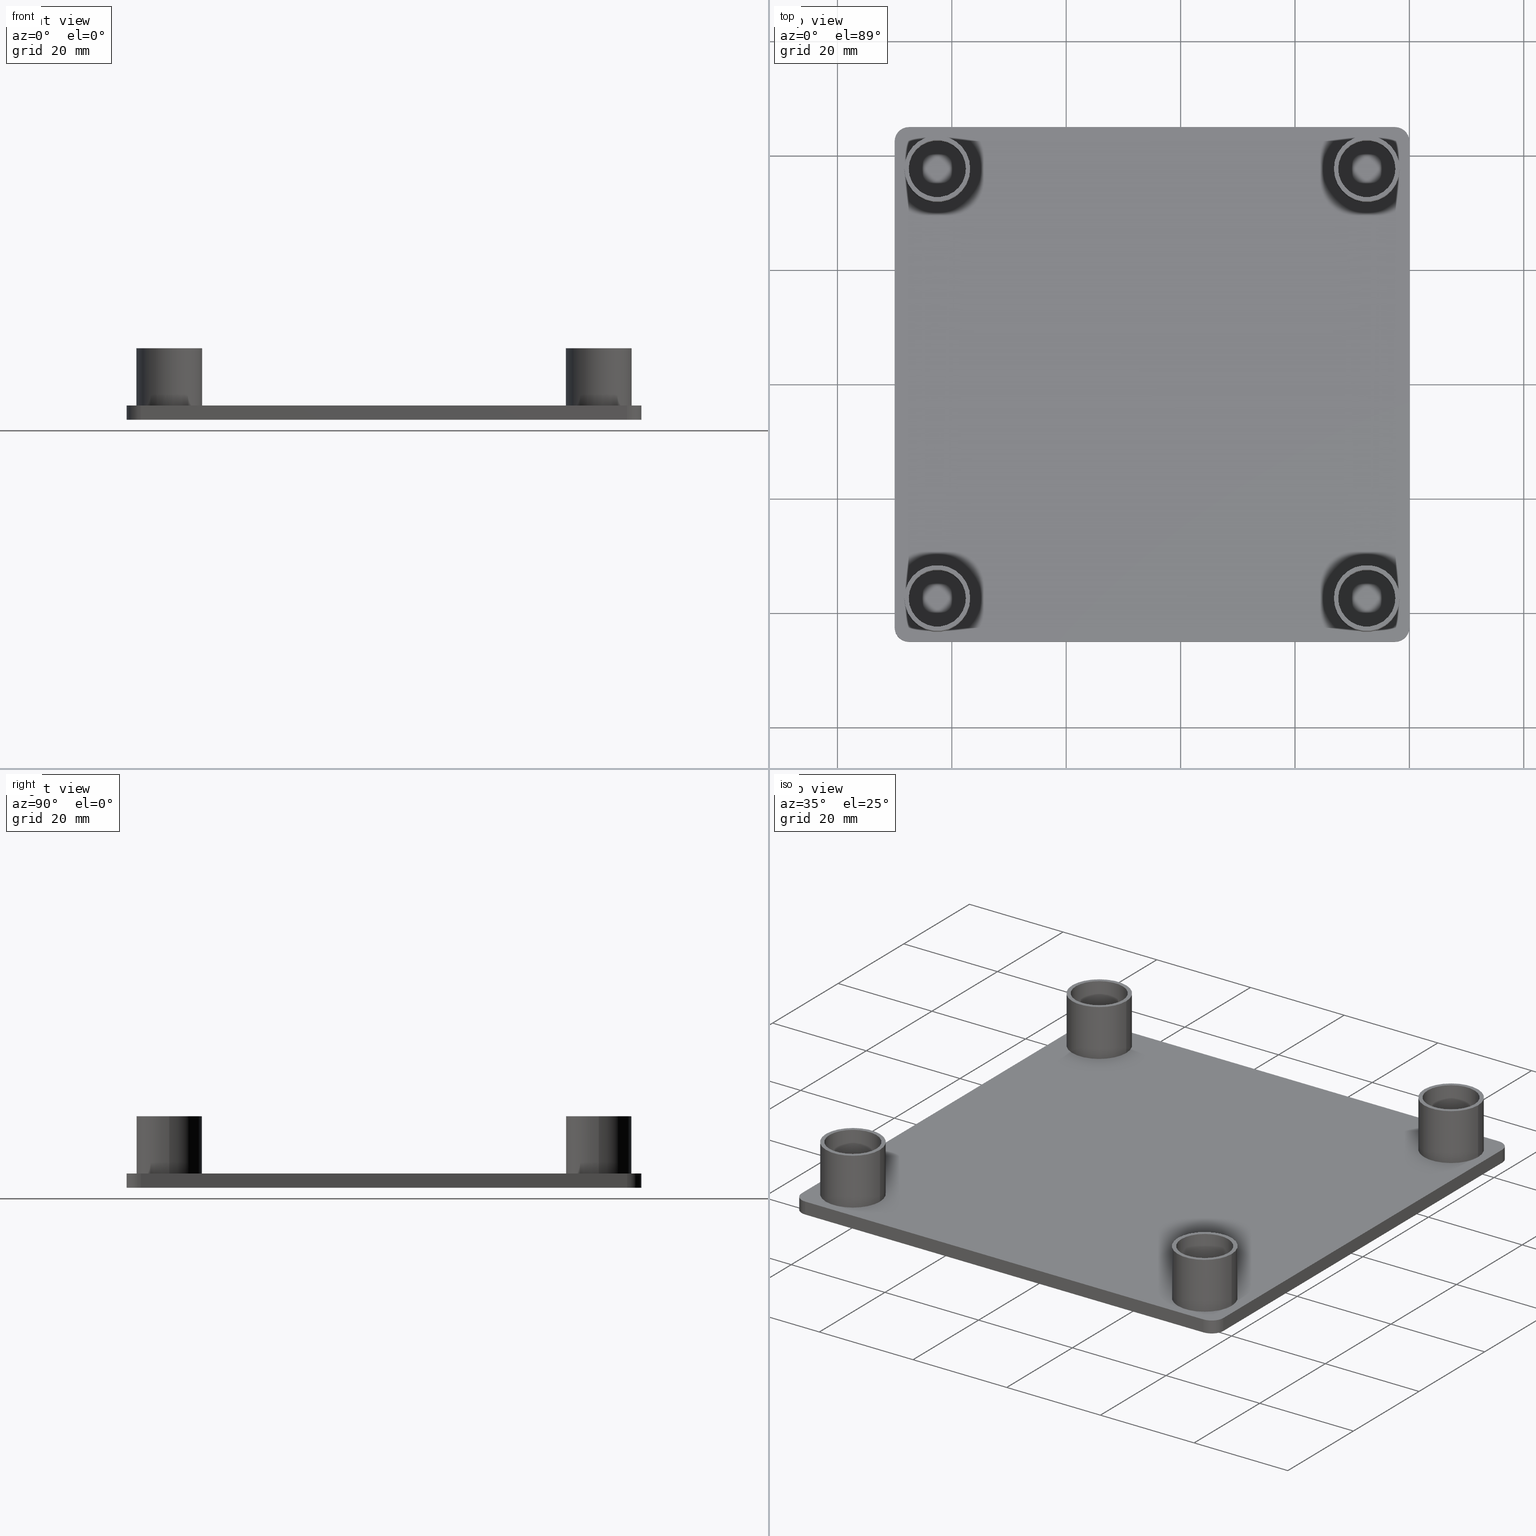
[diagram: canonical four-view strip — front | top / right | iso, engineering-drawing reading convention]
A machine part, canonical four-view strip (front | top / right | iso — engineering-drawing reading convention). The complete STEP part file that produces these views, byte-faithful:
ISO-10303-21;
HEADER;
/****************************************************************
 * Generated by software with PDE/Lib inside                    *
 * PDElib Version v4.4, created Mon 02/23/2004                  *
 * International Technegroup Inc. (www.iti-oh.com)              *
 ****************************************************************/
FILE_DESCRIPTION(('STEP AP203'),'2;1');
FILE_NAME('18.060.00.stp','2011-03-07T08:33:02',(''),(''),'2009.3.110','THINKDESIGN','');
FILE_SCHEMA(('CONFIG_CONTROL_DESIGN'));
ENDSEC;
DATA;
#2=CARTESIAN_POINT('',(-87.499954999650072,-44.999977499820034,0.0));
#3=DIRECTION('',(0.0,1.0,0.0));
#4=DIRECTION('',(1.0,0.0,0.0));
#5=AXIS2_PLACEMENT_3D('',#2,#3,#4);
#6=PLANE('',#5);
#7=CARTESIAN_POINT('',(-87.499954999650072,-44.999977499820034,0.0));
#8=VERTEX_POINT('',#7);
#9=CARTESIAN_POINT('',(-87.499954999650072,-44.999977499820034,-2.500000000000000));
#10=VERTEX_POINT('',#9);
#11=CARTESIAN_POINT('',(-87.499954999650072,-44.999977499820034,0.0));
#12=DIRECTION('',(0.0,0.0,-1.0));
#13=VECTOR('',#12,2.500000000000000);
#14=LINE('',#11,#13);
#15=EDGE_CURVE('',#8,#10,#14,.T.);
#16=ORIENTED_EDGE('',*,*,#15,.T.);
#17=CARTESIAN_POINT('',(-2.499999999989996,-44.999977499820034,-2.500000000000000));
#18=VERTEX_POINT('',#17);
#19=CARTESIAN_POINT('',(-87.499954999650015,-44.999977499819998,-2.500000000000000));
#20=DIRECTION('',(1.0,0.0,0.0));
#21=VECTOR('',#20,84.999954999660019);
#22=LINE('',#19,#21);
#23=EDGE_CURVE('',#10,#18,#22,.T.);
#24=ORIENTED_EDGE('',*,*,#23,.T.);
#25=CARTESIAN_POINT('',(-2.499999999989996,-44.999977499820034,0.0));
#26=VERTEX_POINT('',#25);
#27=CARTESIAN_POINT('',(-2.499999999989996,-44.999977499820034,0.0));
#28=DIRECTION('',(0.0,0.0,-1.0));
#29=VECTOR('',#28,2.500000000000000);
#30=LINE('',#27,#29);
#31=EDGE_CURVE('',#26,#18,#30,.T.);
#32=ORIENTED_EDGE('',*,*,#31,.F.);
#33=CARTESIAN_POINT('',(-87.499954999650015,-44.999977499819998,0.0));
#34=DIRECTION('',(1.0,0.0,0.0));
#35=VECTOR('',#34,84.999954999660019);
#36=LINE('',#33,#35);
#37=EDGE_CURVE('',#8,#26,#36,.T.);
#38=ORIENTED_EDGE('',*,*,#37,.F.);
#39=EDGE_LOOP('',(#16,#24,#32,#38));
#40=FACE_OUTER_BOUND('',#39,.T.);
#41=ADVANCED_FACE('',(#40),#6,.F.);
#42=CARTESIAN_POINT('',(-2.499999999989996,-42.499977499830038,0.0));
#43=DIRECTION('',(0.0,0.0,1.0));
#44=DIRECTION('',(1.0,0.0,0.0));
#45=AXIS2_PLACEMENT_3D('',#42,#43,#44);
#46=CYLINDRICAL_SURFACE('',#45,2.499999999990000);
#47=ORIENTED_EDGE('',*,*,#31,.T.);
#48=CARTESIAN_POINT('',(0.0,-42.499977499830038,-2.500000000000000));
#49=VERTEX_POINT('',#48);
#50=CARTESIAN_POINT('',(-2.499999999989996,-42.499977499830038,-2.500000000000000));
#51=DIRECTION('',(0.0,0.0,1.0));
#52=DIRECTION('',(1.0,0.0,0.0));
#53=AXIS2_PLACEMENT_3D('',#50,#51,#52);
#54=CIRCLE('',#53,2.499999999990000);
#55=EDGE_CURVE('',#18,#49,#54,.T.);
#56=ORIENTED_EDGE('',*,*,#55,.T.);
#57=CARTESIAN_POINT('',(0.0,-42.499977499830038,0.0));
#58=VERTEX_POINT('',#57);
#59=CARTESIAN_POINT('',(0.0,-42.499977499830038,0.0));
#60=DIRECTION('',(0.0,0.0,-1.0));
#61=VECTOR('',#60,2.500000000000000);
#62=LINE('',#59,#61);
#63=EDGE_CURVE('',#58,#49,#62,.T.);
#64=ORIENTED_EDGE('',*,*,#63,.F.);
#65=CARTESIAN_POINT('',(-2.499999999989996,-42.499977499830038,0.0));
#66=DIRECTION('',(0.0,0.0,1.0));
#67=DIRECTION('',(1.0,0.0,0.0));
#68=AXIS2_PLACEMENT_3D('',#65,#66,#67);
#69=CIRCLE('',#68,2.499999999990000);
#70=EDGE_CURVE('',#26,#58,#69,.T.);
#71=ORIENTED_EDGE('',*,*,#70,.F.);
#72=EDGE_LOOP('',(#47,#56,#64,#71));
#73=FACE_OUTER_BOUND('',#72,.T.);
#74=ADVANCED_FACE('',(#73),#46,.T.);
#75=CARTESIAN_POINT('',(0.0,-42.499977499830038,0.0));
#76=DIRECTION('',(-1.0,0.0,0.0));
#77=DIRECTION('',(0.0,1.0,0.0));
#78=AXIS2_PLACEMENT_3D('',#75,#76,#77);
#79=PLANE('',#78);
#80=ORIENTED_EDGE('',*,*,#63,.T.);
#81=CARTESIAN_POINT('',(0.0,42.499977499830038,-2.500000000000000));
#82=VERTEX_POINT('',#81);
#83=CARTESIAN_POINT('',(0.0,-42.499977499830038,-2.500000000000000));
#84=DIRECTION('',(0.0,1.0,0.0));
#85=VECTOR('',#84,84.999954999660005);
#86=LINE('',#83,#85);
#87=EDGE_CURVE('',#49,#82,#86,.T.);
#88=ORIENTED_EDGE('',*,*,#87,.T.);
#89=CARTESIAN_POINT('',(0.0,42.499977499830038,0.0));
#90=VERTEX_POINT('',#89);
#91=CARTESIAN_POINT('',(0.0,42.499977499830038,0.0));
#92=DIRECTION('',(0.0,0.0,-1.0));
#93=VECTOR('',#92,2.500000000000000);
#94=LINE('',#91,#93);
#95=EDGE_CURVE('',#90,#82,#94,.T.);
#96=ORIENTED_EDGE('',*,*,#95,.F.);
#97=CARTESIAN_POINT('',(0.0,-42.499977499830038,0.0));
#98=DIRECTION('',(0.0,1.0,0.0));
#99=VECTOR('',#98,84.999954999660005);
#100=LINE('',#97,#99);
#101=EDGE_CURVE('',#58,#90,#100,.T.);
#102=ORIENTED_EDGE('',*,*,#101,.F.);
#103=EDGE_LOOP('',(#80,#88,#96,#102));
#104=FACE_OUTER_BOUND('',#103,.T.);
#105=ADVANCED_FACE('',(#104),#79,.F.);
#106=CARTESIAN_POINT('',(-2.499999999989996,42.499977499830038,0.0));
#107=DIRECTION('',(0.0,0.0,1.0));
#108=DIRECTION('',(1.0,0.0,0.0));
#109=AXIS2_PLACEMENT_3D('',#106,#107,#108);
#110=CYLINDRICAL_SURFACE('',#109,2.499999999990000);
#111=ORIENTED_EDGE('',*,*,#95,.T.);
#112=CARTESIAN_POINT('',(-2.499999999989768,44.999977499820034,-2.500000000000000));
#113=VERTEX_POINT('',#112);
#114=CARTESIAN_POINT('',(-2.499999999989996,42.499977499830038,-2.500000000000000));
#115=DIRECTION('',(0.0,0.0,1.0));
#116=DIRECTION('',(1.0,0.0,0.0));
#117=AXIS2_PLACEMENT_3D('',#114,#115,#116);
#118=CIRCLE('',#117,2.499999999990000);
#119=EDGE_CURVE('',#82,#113,#118,.T.);
#120=ORIENTED_EDGE('',*,*,#119,.T.);
#121=CARTESIAN_POINT('',(-2.499999999989768,44.999977499820034,0.0));
#122=VERTEX_POINT('',#121);
#123=CARTESIAN_POINT('',(-2.499999999989768,44.999977499820034,0.0));
#124=DIRECTION('',(0.0,0.0,-1.0));
#125=VECTOR('',#124,2.500000000000000);
#126=LINE('',#123,#125);
#127=EDGE_CURVE('',#122,#113,#126,.T.);
#128=ORIENTED_EDGE('',*,*,#127,.F.);
#129=CARTESIAN_POINT('',(-2.499999999989996,42.499977499830038,0.0));
#130=DIRECTION('',(0.0,0.0,1.0));
#131=DIRECTION('',(1.0,0.0,0.0));
#132=AXIS2_PLACEMENT_3D('',#129,#130,#131);
#133=CIRCLE('',#132,2.499999999990000);
#134=EDGE_CURVE('',#90,#122,#133,.T.);
#135=ORIENTED_EDGE('',*,*,#134,.F.);
#136=EDGE_LOOP('',(#111,#120,#128,#135));
#137=FACE_OUTER_BOUND('',#136,.T.);
#138=ADVANCED_FACE('',(#137),#110,.T.);
#139=CARTESIAN_POINT('',(-2.499999999989768,44.999977499820034,0.0));
#140=DIRECTION('',(0.0,-1.0,0.0));
#141=DIRECTION('',(-1.0,0.0,0.0));
#142=AXIS2_PLACEMENT_3D('',#139,#140,#141);
#143=PLANE('',#142);
#144=ORIENTED_EDGE('',*,*,#127,.T.);
#145=CARTESIAN_POINT('',(-87.499954999649844,44.999977499820034,-2.500000000000000));
#146=VERTEX_POINT('',#145);
#147=CARTESIAN_POINT('',(-2.499999999989853,44.999977499820034,-2.500000000000000));
#148=DIRECTION('',(-1.0,0.0,0.0));
#149=VECTOR('',#148,84.999954999659991);
#150=LINE('',#147,#149);
#151=EDGE_CURVE('',#113,#146,#150,.T.);
#152=ORIENTED_EDGE('',*,*,#151,.T.);
#153=CARTESIAN_POINT('',(-87.499954999649844,44.999977499820034,0.0));
#154=VERTEX_POINT('',#153);
#155=CARTESIAN_POINT('',(-87.499954999649844,44.999977499820034,0.0));
#156=DIRECTION('',(0.0,0.0,-1.0));
#157=VECTOR('',#156,2.500000000000000);
#158=LINE('',#155,#157);
#159=EDGE_CURVE('',#154,#146,#158,.T.);
#160=ORIENTED_EDGE('',*,*,#159,.F.);
#161=CARTESIAN_POINT('',(-2.499999999989853,44.999977499820034,0.0));
#162=DIRECTION('',(-1.0,0.0,0.0));
#163=VECTOR('',#162,84.999954999659991);
#164=LINE('',#161,#163);
#165=EDGE_CURVE('',#122,#154,#164,.T.);
#166=ORIENTED_EDGE('',*,*,#165,.F.);
#167=EDGE_LOOP('',(#144,#152,#160,#166));
#168=FACE_OUTER_BOUND('',#167,.T.);
#169=ADVANCED_FACE('',(#168),#143,.F.);
#170=CARTESIAN_POINT('',(-87.499954999649844,42.499977499830038,0.0));
#171=DIRECTION('',(0.0,0.0,1.0));
#172=DIRECTION('',(1.0,0.0,0.0));
#173=AXIS2_PLACEMENT_3D('',#170,#171,#172);
#174=CYLINDRICAL_SURFACE('',#173,2.499999999990000);
#175=ORIENTED_EDGE('',*,*,#159,.T.);
#176=CARTESIAN_POINT('',(-89.999954999640067,42.499977499830038,-2.500000000000000));
#177=VERTEX_POINT('',#176);
#178=CARTESIAN_POINT('',(-87.499954999649844,42.499977499830038,-2.500000000000000));
#179=DIRECTION('',(0.0,0.0,1.0));
#180=DIRECTION('',(1.0,0.0,0.0));
#181=AXIS2_PLACEMENT_3D('',#178,#179,#180);
#182=CIRCLE('',#181,2.499999999990000);
#183=EDGE_CURVE('',#146,#177,#182,.T.);
#184=ORIENTED_EDGE('',*,*,#183,.T.);
#185=CARTESIAN_POINT('',(-89.999954999640067,42.499977499830038,0.0));
#186=VERTEX_POINT('',#185);
#187=CARTESIAN_POINT('',(-89.999954999640067,42.499977499830038,0.0));
#188=DIRECTION('',(0.0,0.0,-1.0));
#189=VECTOR('',#188,2.500000000000000);
#190=LINE('',#187,#189);
#191=EDGE_CURVE('',#186,#177,#190,.T.);
#192=ORIENTED_EDGE('',*,*,#191,.F.);
#193=CARTESIAN_POINT('',(-87.499954999649844,42.499977499830038,0.0));
#194=DIRECTION('',(0.0,0.0,1.0));
#195=DIRECTION('',(1.0,0.0,0.0));
#196=AXIS2_PLACEMENT_3D('',#193,#194,#195);
#197=CIRCLE('',#196,2.499999999990000);
#198=EDGE_CURVE('',#154,#186,#197,.T.);
#199=ORIENTED_EDGE('',*,*,#198,.F.);
#200=EDGE_LOOP('',(#175,#184,#192,#199));
#201=FACE_OUTER_BOUND('',#200,.T.);
#202=ADVANCED_FACE('',(#201),#174,.T.);
#203=CARTESIAN_POINT('',(-89.999954999640067,42.499977499830038,0.0));
#204=DIRECTION('',(1.0,0.0,0.0));
#205=DIRECTION('',(0.0,-1.0,0.0));
#206=AXIS2_PLACEMENT_3D('',#203,#204,#205);
#207=PLANE('',#206);
#208=ORIENTED_EDGE('',*,*,#191,.T.);
#209=CARTESIAN_POINT('',(-89.999954999640067,-42.499977499830038,-2.500000000000000));
#210=VERTEX_POINT('',#209);
#211=CARTESIAN_POINT('',(-89.999954999640053,42.499977499829924,-2.500000000000000));
#212=DIRECTION('',(0.0,-1.0,0.0));
#213=VECTOR('',#212,84.999954999659963);
#214=LINE('',#211,#213);
#215=EDGE_CURVE('',#177,#210,#214,.T.);
#216=ORIENTED_EDGE('',*,*,#215,.T.);
#217=CARTESIAN_POINT('',(-89.999954999640067,-42.499977499830038,0.0));
#218=VERTEX_POINT('',#217);
#219=CARTESIAN_POINT('',(-89.999954999640067,-42.499977499830038,0.0));
#220=DIRECTION('',(0.0,0.0,-1.0));
#221=VECTOR('',#220,2.500000000000000);
#222=LINE('',#219,#221);
#223=EDGE_CURVE('',#218,#210,#222,.T.);
#224=ORIENTED_EDGE('',*,*,#223,.F.);
#225=CARTESIAN_POINT('',(-89.999954999640053,42.499977499829924,0.0));
#226=DIRECTION('',(0.0,-1.0,0.0));
#227=VECTOR('',#226,84.999954999659963);
#228=LINE('',#225,#227);
#229=EDGE_CURVE('',#186,#218,#228,.T.);
#230=ORIENTED_EDGE('',*,*,#229,.F.);
#231=EDGE_LOOP('',(#208,#216,#224,#230));
#232=FACE_OUTER_BOUND('',#231,.T.);
#233=ADVANCED_FACE('',(#232),#207,.F.);
#234=CARTESIAN_POINT('',(-87.499954999650072,-42.499977499830038,0.0));
#235=DIRECTION('',(0.0,0.0,1.0));
#236=DIRECTION('',(1.0,0.0,0.0));
#237=AXIS2_PLACEMENT_3D('',#234,#235,#236);
#238=CYLINDRICAL_SURFACE('',#237,2.499999999990000);
#239=ORIENTED_EDGE('',*,*,#223,.T.);
#240=CARTESIAN_POINT('',(-87.499954999650072,-42.499977499830038,-2.500000000000000));
#241=DIRECTION('',(0.0,0.0,1.0));
#242=DIRECTION('',(1.0,0.0,0.0));
#243=AXIS2_PLACEMENT_3D('',#240,#241,#242);
#244=CIRCLE('',#243,2.499999999990000);
#245=EDGE_CURVE('',#210,#10,#244,.T.);
#246=ORIENTED_EDGE('',*,*,#245,.T.);
#247=ORIENTED_EDGE('',*,*,#15,.F.);
#248=CARTESIAN_POINT('',(-87.499954999650072,-42.499977499830038,0.0));
#249=DIRECTION('',(0.0,0.0,1.0));
#250=DIRECTION('',(1.0,0.0,0.0));
#251=AXIS2_PLACEMENT_3D('',#248,#249,#250);
#252=CIRCLE('',#251,2.499999999990000);
#253=EDGE_CURVE('',#218,#8,#252,.T.);
#254=ORIENTED_EDGE('',*,*,#253,.F.);
#255=EDGE_LOOP('',(#239,#246,#247,#254));
#256=FACE_OUTER_BOUND('',#255,.T.);
#257=ADVANCED_FACE('',(#256),#238,.T.);
#258=CARTESIAN_POINT('',(-98.999955232832463,-53.999977732792559,0.0));
#259=DIRECTION('',(0.0,0.0,1.0));
#260=DIRECTION('',(1.0,0.0,0.0));
#261=AXIS2_PLACEMENT_3D('',#258,#259,#260);
#262=PLANE('',#261);
#263=ORIENTED_EDGE('',*,*,#37,.T.);
#264=ORIENTED_EDGE('',*,*,#70,.T.);
#265=ORIENTED_EDGE('',*,*,#101,.T.);
#266=ORIENTED_EDGE('',*,*,#134,.T.);
#267=ORIENTED_EDGE('',*,*,#165,.T.);
#268=ORIENTED_EDGE('',*,*,#198,.T.);
#269=ORIENTED_EDGE('',*,*,#229,.T.);
#270=ORIENTED_EDGE('',*,*,#253,.T.);
#271=EDGE_LOOP('',(#263,#264,#265,#266,#267,#268,#269,#270));
#272=FACE_OUTER_BOUND('',#271,.T.);
#273=CARTESIAN_POINT('',(-13.199999999947259,-37.549977499849774,0.0));
#274=VERTEX_POINT('',#273);
#275=CARTESIAN_POINT('',(-1.699999999993224,-37.549977499849774,0.0));
#276=VERTEX_POINT('',#275);
#277=CARTESIAN_POINT('',(-7.449999999970260,-37.549977499849774,0.0));
#278=DIRECTION('',(0.0,0.0,1.0));
#279=DIRECTION('',(1.0,0.0,0.0));
#280=AXIS2_PLACEMENT_3D('',#277,#278,#279);
#281=CIRCLE('',#280,5.749999999977001);
#282=EDGE_CURVE('',#274,#276,#281,.T.);
#283=ORIENTED_EDGE('',*,*,#282,.F.);
#284=CARTESIAN_POINT('',(-7.449999999970260,-37.549977499849774,0.0));
#285=DIRECTION('',(0.0,0.0,1.0));
#286=DIRECTION('',(1.0,0.0,0.0));
#287=AXIS2_PLACEMENT_3D('',#284,#285,#286);
#288=CIRCLE('',#287,5.749999999977001);
#289=EDGE_CURVE('',#276,#274,#288,.T.);
#290=ORIENTED_EDGE('',*,*,#289,.F.);
#291=EDGE_LOOP('',(#283,#290));
#292=FACE_BOUND('',#291,.T.);
#293=CARTESIAN_POINT('',(-13.199999999947032,37.550022499850002,0.0));
#294=VERTEX_POINT('',#293);
#295=CARTESIAN_POINT('',(-1.699999999992997,37.550022499850002,0.0));
#296=VERTEX_POINT('',#295);
#297=CARTESIAN_POINT('',(-7.449999999970032,37.550022499850002,0.0));
#298=DIRECTION('',(0.0,0.0,1.0));
#299=DIRECTION('',(1.0,0.0,0.0));
#300=AXIS2_PLACEMENT_3D('',#297,#298,#299);
#301=CIRCLE('',#300,5.749999999977001);
#302=EDGE_CURVE('',#294,#296,#301,.T.);
#303=ORIENTED_EDGE('',*,*,#302,.F.);
#304=CARTESIAN_POINT('',(-7.449999999970032,37.550022499850002,0.0));
#305=DIRECTION('',(0.0,0.0,1.0));
#306=DIRECTION('',(1.0,0.0,0.0));
#307=AXIS2_PLACEMENT_3D('',#304,#305,#306);
#308=CIRCLE('',#307,5.749999999977001);
#309=EDGE_CURVE('',#296,#294,#308,.T.);
#310=ORIENTED_EDGE('',*,*,#309,.F.);
#311=EDGE_LOOP('',(#303,#310));
#312=FACE_BOUND('',#311,.T.);
#313=CARTESIAN_POINT('',(-88.299999999646815,-37.550022499849547,0.0));
#314=VERTEX_POINT('',#313);
#315=CARTESIAN_POINT('',(-76.799999999692773,-37.550022499849547,0.0));
#316=VERTEX_POINT('',#315);
#317=CARTESIAN_POINT('',(-82.549999999669808,-37.550022499849547,0.0));
#318=DIRECTION('',(0.0,0.0,1.0));
#319=DIRECTION('',(1.0,0.0,0.0));
#320=AXIS2_PLACEMENT_3D('',#317,#318,#319);
#321=CIRCLE('',#320,5.749999999977001);
#322=EDGE_CURVE('',#314,#316,#321,.T.);
#323=ORIENTED_EDGE('',*,*,#322,.F.);
#324=CARTESIAN_POINT('',(-82.549999999669808,-37.550022499849547,0.0));
#325=DIRECTION('',(0.0,0.0,1.0));
#326=DIRECTION('',(1.0,0.0,0.0));
#327=AXIS2_PLACEMENT_3D('',#324,#325,#326);
#328=CIRCLE('',#327,5.749999999977001);
#329=EDGE_CURVE('',#316,#314,#328,.T.);
#330=ORIENTED_EDGE('',*,*,#329,.F.);
#331=EDGE_LOOP('',(#323,#330));
#332=FACE_BOUND('',#331,.T.);
#333=CARTESIAN_POINT('',(-88.299999999646815,37.550022499850002,0.0));
#334=VERTEX_POINT('',#333);
#335=CARTESIAN_POINT('',(-76.799999999692773,37.550022499850002,0.0));
#336=VERTEX_POINT('',#335);
#337=CARTESIAN_POINT('',(-82.549999999669808,37.550022499850002,0.0));
#338=DIRECTION('',(0.0,0.0,1.0));
#339=DIRECTION('',(1.0,0.0,0.0));
#340=AXIS2_PLACEMENT_3D('',#337,#338,#339);
#341=CIRCLE('',#340,5.749999999977001);
#342=EDGE_CURVE('',#334,#336,#341,.T.);
#343=ORIENTED_EDGE('',*,*,#342,.F.);
#344=CARTESIAN_POINT('',(-82.549999999669808,37.550022499850002,0.0));
#345=DIRECTION('',(0.0,0.0,1.0));
#346=DIRECTION('',(1.0,0.0,0.0));
#347=AXIS2_PLACEMENT_3D('',#344,#345,#346);
#348=CIRCLE('',#347,5.749999999977001);
#349=EDGE_CURVE('',#336,#334,#348,.T.);
#350=ORIENTED_EDGE('',*,*,#349,.F.);
#351=EDGE_LOOP('',(#343,#350));
#352=FACE_BOUND('',#351,.T.);
#353=ADVANCED_FACE('',(#272,#292,#312,#332,#352),#262,.T.);
#354=CARTESIAN_POINT('',(-98.999955232832463,-53.999977732792559,0.0));
#355=DIRECTION('',(0.0,0.0,1.0));
#356=DIRECTION('',(1.0,0.0,0.0));
#357=AXIS2_PLACEMENT_3D('',#354,#355,#356);
#358=PLANE('',#357);
#359=CARTESIAN_POINT('',(-87.549999999649813,37.550022499850002,0.0));
#360=VERTEX_POINT('',#359);
#361=CARTESIAN_POINT('',(-77.549999999689817,37.550022499850002,0.0));
#362=VERTEX_POINT('',#361);
#363=CARTESIAN_POINT('',(-82.549999999669808,37.550022499850002,0.0));
#364=DIRECTION('',(0.0,0.0,-1.0));
#365=DIRECTION('',(1.0,0.0,0.0));
#366=AXIS2_PLACEMENT_3D('',#363,#364,#365);
#367=CIRCLE('',#366,4.999999999980001);
#368=EDGE_CURVE('',#360,#362,#367,.T.);
#369=ORIENTED_EDGE('',*,*,#368,.F.);
#370=CARTESIAN_POINT('',(-82.549999999669808,37.550022499850002,0.0));
#371=DIRECTION('',(0.0,0.0,-1.0));
#372=DIRECTION('',(1.0,0.0,0.0));
#373=AXIS2_PLACEMENT_3D('',#370,#371,#372);
#374=CIRCLE('',#373,4.999999999980001);
#375=EDGE_CURVE('',#362,#360,#374,.T.);
#376=ORIENTED_EDGE('',*,*,#375,.F.);
#377=EDGE_LOOP('',(#369,#376));
#378=FACE_OUTER_BOUND('',#377,.T.);
#379=ADVANCED_FACE('',(#378),#358,.T.);
#380=CARTESIAN_POINT('',(-98.999955232832463,-53.999977732792559,0.0));
#381=DIRECTION('',(0.0,0.0,1.0));
#382=DIRECTION('',(1.0,0.0,0.0));
#383=AXIS2_PLACEMENT_3D('',#380,#381,#382);
#384=PLANE('',#383);
#385=CARTESIAN_POINT('',(-87.549999999649813,-37.550022499849547,0.0));
#386=VERTEX_POINT('',#385);
#387=CARTESIAN_POINT('',(-77.549999999689817,-37.550022499849547,0.0));
#388=VERTEX_POINT('',#387);
#389=CARTESIAN_POINT('',(-82.549999999669808,-37.550022499849547,0.0));
#390=DIRECTION('',(0.0,0.0,-1.0));
#391=DIRECTION('',(1.0,0.0,0.0));
#392=AXIS2_PLACEMENT_3D('',#389,#390,#391);
#393=CIRCLE('',#392,4.999999999980001);
#394=EDGE_CURVE('',#386,#388,#393,.T.);
#395=ORIENTED_EDGE('',*,*,#394,.F.);
#396=CARTESIAN_POINT('',(-82.549999999669808,-37.550022499849547,0.0));
#397=DIRECTION('',(0.0,0.0,-1.0));
#398=DIRECTION('',(1.0,0.0,0.0));
#399=AXIS2_PLACEMENT_3D('',#396,#397,#398);
#400=CIRCLE('',#399,4.999999999980001);
#401=EDGE_CURVE('',#388,#386,#400,.T.);
#402=ORIENTED_EDGE('',*,*,#401,.F.);
#403=EDGE_LOOP('',(#395,#402));
#404=FACE_OUTER_BOUND('',#403,.T.);
#405=ADVANCED_FACE('',(#404),#384,.T.);
#406=CARTESIAN_POINT('',(-98.999955232832463,-53.999977732792559,0.0));
#407=DIRECTION('',(0.0,0.0,1.0));
#408=DIRECTION('',(1.0,0.0,0.0));
#409=AXIS2_PLACEMENT_3D('',#406,#407,#408);
#410=PLANE('',#409);
#411=CARTESIAN_POINT('',(-12.449999999950034,37.550022499850002,0.0));
#412=VERTEX_POINT('',#411);
#413=CARTESIAN_POINT('',(-2.449999999990041,37.550022499850002,0.0));
#414=VERTEX_POINT('',#413);
#415=CARTESIAN_POINT('',(-7.449999999970032,37.550022499850002,0.0));
#416=DIRECTION('',(0.0,0.0,-1.0));
#417=DIRECTION('',(1.0,0.0,0.0));
#418=AXIS2_PLACEMENT_3D('',#415,#416,#417);
#419=CIRCLE('',#418,4.999999999980001);
#420=EDGE_CURVE('',#412,#414,#419,.T.);
#421=ORIENTED_EDGE('',*,*,#420,.F.);
#422=CARTESIAN_POINT('',(-7.449999999970032,37.550022499850002,0.0));
#423=DIRECTION('',(0.0,0.0,-1.0));
#424=DIRECTION('',(1.0,0.0,0.0));
#425=AXIS2_PLACEMENT_3D('',#422,#423,#424);
#426=CIRCLE('',#425,4.999999999980001);
#427=EDGE_CURVE('',#414,#412,#426,.T.);
#428=ORIENTED_EDGE('',*,*,#427,.F.);
#429=EDGE_LOOP('',(#421,#428));
#430=FACE_OUTER_BOUND('',#429,.T.);
#431=ADVANCED_FACE('',(#430),#410,.T.);
#432=CARTESIAN_POINT('',(-98.999955232832463,-53.999977732792559,0.0));
#433=DIRECTION('',(0.0,0.0,1.0));
#434=DIRECTION('',(1.0,0.0,0.0));
#435=AXIS2_PLACEMENT_3D('',#432,#433,#434);
#436=PLANE('',#435);
#437=CARTESIAN_POINT('',(-12.449999999950261,-37.549977499849774,0.0));
#438=VERTEX_POINT('',#437);
#439=CARTESIAN_POINT('',(-2.449999999990268,-37.549977499849774,0.0));
#440=VERTEX_POINT('',#439);
#441=CARTESIAN_POINT('',(-7.449999999970260,-37.549977499849774,0.0));
#442=DIRECTION('',(0.0,0.0,-1.0));
#443=DIRECTION('',(1.0,0.0,0.0));
#444=AXIS2_PLACEMENT_3D('',#441,#442,#443);
#445=CIRCLE('',#444,4.999999999980001);
#446=EDGE_CURVE('',#438,#440,#445,.T.);
#447=ORIENTED_EDGE('',*,*,#446,.F.);
#448=CARTESIAN_POINT('',(-7.449999999970260,-37.549977499849774,0.0));
#449=DIRECTION('',(0.0,0.0,-1.0));
#450=DIRECTION('',(1.0,0.0,0.0));
#451=AXIS2_PLACEMENT_3D('',#448,#449,#450);
#452=CIRCLE('',#451,4.999999999980001);
#453=EDGE_CURVE('',#440,#438,#452,.T.);
#454=ORIENTED_EDGE('',*,*,#453,.F.);
#455=EDGE_LOOP('',(#447,#454));
#456=FACE_OUTER_BOUND('',#455,.T.);
#457=ADVANCED_FACE('',(#456),#436,.T.);
#458=CARTESIAN_POINT('',(-98.999955232832463,-53.999977732792559,-2.500000000000000));
#459=DIRECTION('',(0.0,0.0,1.0));
#460=DIRECTION('',(1.0,0.0,0.0));
#461=AXIS2_PLACEMENT_3D('',#458,#459,#460);
#462=PLANE('',#461);
#463=ORIENTED_EDGE('',*,*,#245,.F.);
#464=ORIENTED_EDGE('',*,*,#215,.F.);
#465=ORIENTED_EDGE('',*,*,#183,.F.);
#466=ORIENTED_EDGE('',*,*,#151,.F.);
#467=ORIENTED_EDGE('',*,*,#119,.F.);
#468=ORIENTED_EDGE('',*,*,#87,.F.);
#469=ORIENTED_EDGE('',*,*,#55,.F.);
#470=ORIENTED_EDGE('',*,*,#23,.F.);
#471=EDGE_LOOP('',(#463,#464,#465,#466,#467,#468,#469,#470));
#472=FACE_OUTER_BOUND('',#471,.T.);
#473=ADVANCED_FACE('',(#472),#462,.F.);
#474=CARTESIAN_POINT('',(-7.449999999970260,-37.549977499849774,0.0));
#475=DIRECTION('',(0.0,0.0,1.0));
#476=DIRECTION('',(1.0,0.0,0.0));
#477=AXIS2_PLACEMENT_3D('',#474,#475,#476);
#478=CYLINDRICAL_SURFACE('',#477,5.749999999977001);
#479=CARTESIAN_POINT('',(-13.199999999947259,-37.549977499849774,10.0));
#480=VERTEX_POINT('',#479);
#481=CARTESIAN_POINT('',(-1.699999999993224,-37.549977499849774,10.0));
#482=VERTEX_POINT('',#481);
#483=CARTESIAN_POINT('',(-7.449999999970260,-37.549977499849774,10.0));
#484=DIRECTION('',(0.0,0.0,1.0));
#485=DIRECTION('',(1.0,0.0,0.0));
#486=AXIS2_PLACEMENT_3D('',#483,#484,#485);
#487=CIRCLE('',#486,5.749999999977001);
#488=EDGE_CURVE('',#480,#482,#487,.T.);
#489=ORIENTED_EDGE('',*,*,#488,.F.);
#490=CARTESIAN_POINT('',(-7.449999999970260,-37.549977499849774,10.0));
#491=DIRECTION('',(0.0,0.0,1.0));
#492=DIRECTION('',(1.0,0.0,0.0));
#493=AXIS2_PLACEMENT_3D('',#490,#491,#492);
#494=CIRCLE('',#493,5.749999999977001);
#495=EDGE_CURVE('',#482,#480,#494,.T.);
#496=ORIENTED_EDGE('',*,*,#495,.F.);
#497=CARTESIAN_POINT('',(-1.699999999993224,-37.549977499849774,0.0));
#498=DIRECTION('',(0.0,0.0,1.0));
#499=VECTOR('',#498,10.0);
#500=LINE('',#497,#499);
#501=EDGE_CURVE('',#276,#482,#500,.T.);
#502=ORIENTED_EDGE('',*,*,#501,.F.);
#503=ORIENTED_EDGE('',*,*,#289,.T.);
#504=ORIENTED_EDGE('',*,*,#282,.T.);
#505=ORIENTED_EDGE('',*,*,#501,.T.);
#506=EDGE_LOOP('',(#489,#496,#502,#503,#504,#505));
#507=FACE_OUTER_BOUND('',#506,.T.);
#508=ADVANCED_FACE('',(#507),#478,.T.);
#509=CARTESIAN_POINT('',(-7.449999999970260,-37.549977499849774,0.0));
#510=DIRECTION('',(0.0,0.0,-1.0));
#511=DIRECTION('',(1.0,-2.449294E-016,0.0));
#512=AXIS2_PLACEMENT_3D('',#509,#510,#511);
#513=CYLINDRICAL_SURFACE('',#512,4.999999999980001);
#514=CARTESIAN_POINT('',(-12.449999999950261,-37.549977499849774,10.0));
#515=VERTEX_POINT('',#514);
#516=CARTESIAN_POINT('',(-2.449999999990268,-37.549977499849774,10.0));
#517=VERTEX_POINT('',#516);
#518=CARTESIAN_POINT('',(-7.449999999970260,-37.549977499849774,10.0));
#519=DIRECTION('',(0.0,0.0,-1.0));
#520=DIRECTION('',(1.0,0.0,0.0));
#521=AXIS2_PLACEMENT_3D('',#518,#519,#520);
#522=CIRCLE('',#521,4.999999999980001);
#523=EDGE_CURVE('',#515,#517,#522,.T.);
#524=ORIENTED_EDGE('',*,*,#523,.F.);
#525=CARTESIAN_POINT('',(-7.449999999970260,-37.549977499849774,10.0));
#526=DIRECTION('',(0.0,0.0,-1.0));
#527=DIRECTION('',(1.0,0.0,0.0));
#528=AXIS2_PLACEMENT_3D('',#525,#526,#527);
#529=CIRCLE('',#528,4.999999999980001);
#530=EDGE_CURVE('',#517,#515,#529,.T.);
#531=ORIENTED_EDGE('',*,*,#530,.F.);
#532=CARTESIAN_POINT('',(-2.449999999990268,-37.549977499849774,0.0));
#533=DIRECTION('',(0.0,0.0,1.0));
#534=VECTOR('',#533,10.0);
#535=LINE('',#532,#534);
#536=EDGE_CURVE('',#440,#517,#535,.T.);
#537=ORIENTED_EDGE('',*,*,#536,.F.);
#538=ORIENTED_EDGE('',*,*,#453,.T.);
#539=ORIENTED_EDGE('',*,*,#446,.T.);
#540=ORIENTED_EDGE('',*,*,#536,.T.);
#541=EDGE_LOOP('',(#524,#531,#537,#538,#539,#540));
#542=FACE_OUTER_BOUND('',#541,.T.);
#543=ADVANCED_FACE('',(#542),#513,.F.);
#544=CARTESIAN_POINT('',(-14.350004732966681,-44.449982232818002,10.0));
#545=DIRECTION('',(0.0,0.0,1.0));
#546=DIRECTION('',(1.0,0.0,0.0));
#547=AXIS2_PLACEMENT_3D('',#544,#545,#546);
#548=PLANE('',#547);
#549=ORIENTED_EDGE('',*,*,#495,.T.);
#550=ORIENTED_EDGE('',*,*,#488,.T.);
#551=EDGE_LOOP('',(#549,#550));
#552=FACE_OUTER_BOUND('',#551,.T.);
#553=ORIENTED_EDGE('',*,*,#530,.T.);
#554=ORIENTED_EDGE('',*,*,#523,.T.);
#555=EDGE_LOOP('',(#553,#554));
#556=FACE_BOUND('',#555,.T.);
#557=ADVANCED_FACE('',(#552,#556),#548,.T.);
#558=CARTESIAN_POINT('',(-7.449999999970032,37.550022499850002,0.0));
#559=DIRECTION('',(0.0,0.0,1.0));
#560=DIRECTION('',(1.0,0.0,0.0));
#561=AXIS2_PLACEMENT_3D('',#558,#559,#560);
#562=CYLINDRICAL_SURFACE('',#561,5.749999999977001);
#563=CARTESIAN_POINT('',(-13.199999999947032,37.550022499850002,10.0));
#564=VERTEX_POINT('',#563);
#565=CARTESIAN_POINT('',(-1.699999999992997,37.550022499850002,10.0));
#566=VERTEX_POINT('',#565);
#567=CARTESIAN_POINT('',(-7.449999999970032,37.550022499850002,10.0));
#568=DIRECTION('',(0.0,0.0,1.0));
#569=DIRECTION('',(1.0,0.0,0.0));
#570=AXIS2_PLACEMENT_3D('',#567,#568,#569);
#571=CIRCLE('',#570,5.749999999977001);
#572=EDGE_CURVE('',#564,#566,#571,.T.);
#573=ORIENTED_EDGE('',*,*,#572,.F.);
#574=CARTESIAN_POINT('',(-7.449999999970032,37.550022499850002,10.0));
#575=DIRECTION('',(0.0,0.0,1.0));
#576=DIRECTION('',(1.0,0.0,0.0));
#577=AXIS2_PLACEMENT_3D('',#574,#575,#576);
#578=CIRCLE('',#577,5.749999999977001);
#579=EDGE_CURVE('',#566,#564,#578,.T.);
#580=ORIENTED_EDGE('',*,*,#579,.F.);
#581=CARTESIAN_POINT('',(-1.699999999992997,37.550022499850002,0.0));
#582=DIRECTION('',(0.0,0.0,1.0));
#583=VECTOR('',#582,10.0);
#584=LINE('',#581,#583);
#585=EDGE_CURVE('',#296,#566,#584,.T.);
#586=ORIENTED_EDGE('',*,*,#585,.F.);
#587=ORIENTED_EDGE('',*,*,#309,.T.);
#588=ORIENTED_EDGE('',*,*,#302,.T.);
#589=ORIENTED_EDGE('',*,*,#585,.T.);
#590=EDGE_LOOP('',(#573,#580,#586,#587,#588,#589));
#591=FACE_OUTER_BOUND('',#590,.T.);
#592=ADVANCED_FACE('',(#591),#562,.T.);
#593=CARTESIAN_POINT('',(-7.449999999970032,37.550022499850002,0.0));
#594=DIRECTION('',(0.0,0.0,-1.0));
#595=DIRECTION('',(1.0,-2.449294E-016,0.0));
#596=AXIS2_PLACEMENT_3D('',#593,#594,#595);
#597=CYLINDRICAL_SURFACE('',#596,4.999999999980001);
#598=CARTESIAN_POINT('',(-12.449999999950034,37.550022499850002,10.0));
#599=VERTEX_POINT('',#598);
#600=CARTESIAN_POINT('',(-2.449999999990041,37.550022499850002,10.0));
#601=VERTEX_POINT('',#600);
#602=CARTESIAN_POINT('',(-7.449999999970032,37.550022499850002,10.0));
#603=DIRECTION('',(0.0,0.0,-1.0));
#604=DIRECTION('',(1.0,0.0,0.0));
#605=AXIS2_PLACEMENT_3D('',#602,#603,#604);
#606=CIRCLE('',#605,4.999999999980001);
#607=EDGE_CURVE('',#599,#601,#606,.T.);
#608=ORIENTED_EDGE('',*,*,#607,.F.);
#609=CARTESIAN_POINT('',(-7.449999999970032,37.550022499850002,10.0));
#610=DIRECTION('',(0.0,0.0,-1.0));
#611=DIRECTION('',(1.0,0.0,0.0));
#612=AXIS2_PLACEMENT_3D('',#609,#610,#611);
#613=CIRCLE('',#612,4.999999999980001);
#614=EDGE_CURVE('',#601,#599,#613,.T.);
#615=ORIENTED_EDGE('',*,*,#614,.F.);
#616=CARTESIAN_POINT('',(-2.449999999990041,37.550022499850002,0.0));
#617=DIRECTION('',(0.0,0.0,1.0));
#618=VECTOR('',#617,10.0);
#619=LINE('',#616,#618);
#620=EDGE_CURVE('',#414,#601,#619,.T.);
#621=ORIENTED_EDGE('',*,*,#620,.F.);
#622=ORIENTED_EDGE('',*,*,#427,.T.);
#623=ORIENTED_EDGE('',*,*,#420,.T.);
#624=ORIENTED_EDGE('',*,*,#620,.T.);
#625=EDGE_LOOP('',(#608,#615,#621,#622,#623,#624));
#626=FACE_OUTER_BOUND('',#625,.T.);
#627=ADVANCED_FACE('',(#626),#597,.F.);
#628=CARTESIAN_POINT('',(-14.350004733166315,30.650017766682140,10.0));
#629=DIRECTION('',(0.0,0.0,1.0));
#630=DIRECTION('',(1.0,0.0,0.0));
#631=AXIS2_PLACEMENT_3D('',#628,#629,#630);
#632=PLANE('',#631);
#633=ORIENTED_EDGE('',*,*,#579,.T.);
#634=ORIENTED_EDGE('',*,*,#572,.T.);
#635=EDGE_LOOP('',(#633,#634));
#636=FACE_OUTER_BOUND('',#635,.T.);
#637=ORIENTED_EDGE('',*,*,#614,.T.);
#638=ORIENTED_EDGE('',*,*,#607,.T.);
#639=EDGE_LOOP('',(#637,#638));
#640=FACE_BOUND('',#639,.T.);
#641=ADVANCED_FACE('',(#636,#640),#632,.T.);
#642=CARTESIAN_POINT('',(-82.549999999669808,-37.550022499849547,0.0));
#643=DIRECTION('',(0.0,0.0,1.0));
#644=DIRECTION('',(1.0,0.0,0.0));
#645=AXIS2_PLACEMENT_3D('',#642,#643,#644);
#646=CYLINDRICAL_SURFACE('',#645,5.749999999977001);
#647=CARTESIAN_POINT('',(-88.299999999646815,-37.550022499849547,10.0));
#648=VERTEX_POINT('',#647);
#649=CARTESIAN_POINT('',(-76.799999999692773,-37.550022499849547,10.0));
#650=VERTEX_POINT('',#649);
#651=CARTESIAN_POINT('',(-82.549999999669808,-37.550022499849547,10.0));
#652=DIRECTION('',(0.0,0.0,1.0));
#653=DIRECTION('',(1.0,0.0,0.0));
#654=AXIS2_PLACEMENT_3D('',#651,#652,#653);
#655=CIRCLE('',#654,5.749999999977001);
#656=EDGE_CURVE('',#648,#650,#655,.T.);
#657=ORIENTED_EDGE('',*,*,#656,.F.);
#658=CARTESIAN_POINT('',(-82.549999999669808,-37.550022499849547,10.0));
#659=DIRECTION('',(0.0,0.0,1.0));
#660=DIRECTION('',(1.0,0.0,0.0));
#661=AXIS2_PLACEMENT_3D('',#658,#659,#660);
#662=CIRCLE('',#661,5.749999999977001);
#663=EDGE_CURVE('',#650,#648,#662,.T.);
#664=ORIENTED_EDGE('',*,*,#663,.F.);
#665=CARTESIAN_POINT('',(-76.799999999692773,-37.550022499849547,0.0));
#666=DIRECTION('',(0.0,0.0,1.0));
#667=VECTOR('',#666,10.0);
#668=LINE('',#665,#667);
#669=EDGE_CURVE('',#316,#650,#668,.T.);
#670=ORIENTED_EDGE('',*,*,#669,.F.);
#671=ORIENTED_EDGE('',*,*,#329,.T.);
#672=ORIENTED_EDGE('',*,*,#322,.T.);
#673=ORIENTED_EDGE('',*,*,#669,.T.);
#674=EDGE_LOOP('',(#657,#664,#670,#671,#672,#673));
#675=FACE_OUTER_BOUND('',#674,.T.);
#676=ADVANCED_FACE('',(#675),#646,.T.);
#677=CARTESIAN_POINT('',(-82.549999999669808,-37.550022499849547,0.0));
#678=DIRECTION('',(0.0,0.0,-1.0));
#679=DIRECTION('',(1.0,-2.449294E-016,0.0));
#680=AXIS2_PLACEMENT_3D('',#677,#678,#679);
#681=CYLINDRICAL_SURFACE('',#680,4.999999999980001);
#682=CARTESIAN_POINT('',(-87.549999999649813,-37.550022499849547,10.0));
#683=VERTEX_POINT('',#682);
#684=CARTESIAN_POINT('',(-77.549999999689817,-37.550022499849547,10.0));
#685=VERTEX_POINT('',#684);
#686=CARTESIAN_POINT('',(-82.549999999669808,-37.550022499849547,10.0));
#687=DIRECTION('',(0.0,0.0,-1.0));
#688=DIRECTION('',(1.0,0.0,0.0));
#689=AXIS2_PLACEMENT_3D('',#686,#687,#688);
#690=CIRCLE('',#689,4.999999999980001);
#691=EDGE_CURVE('',#683,#685,#690,.T.);
#692=ORIENTED_EDGE('',*,*,#691,.F.);
#693=CARTESIAN_POINT('',(-82.549999999669808,-37.550022499849547,10.0));
#694=DIRECTION('',(0.0,0.0,-1.0));
#695=DIRECTION('',(1.0,0.0,0.0));
#696=AXIS2_PLACEMENT_3D('',#693,#694,#695);
#697=CIRCLE('',#696,4.999999999980001);
#698=EDGE_CURVE('',#685,#683,#697,.T.);
#699=ORIENTED_EDGE('',*,*,#698,.F.);
#700=CARTESIAN_POINT('',(-77.549999999689817,-37.550022499849547,0.0));
#701=DIRECTION('',(0.0,0.0,1.0));
#702=VECTOR('',#701,10.0);
#703=LINE('',#700,#702);
#704=EDGE_CURVE('',#388,#685,#703,.T.);
#705=ORIENTED_EDGE('',*,*,#704,.F.);
#706=ORIENTED_EDGE('',*,*,#401,.T.);
#707=ORIENTED_EDGE('',*,*,#394,.T.);
#708=ORIENTED_EDGE('',*,*,#704,.T.);
#709=EDGE_LOOP('',(#692,#699,#705,#706,#707,#708));
#710=FACE_OUTER_BOUND('',#709,.T.);
#711=ADVANCED_FACE('',(#710),#681,.F.);
#712=CARTESIAN_POINT('',(-89.450004732666230,-44.450027232817774,10.0));
#713=DIRECTION('',(0.0,0.0,1.0));
#714=DIRECTION('',(1.0,0.0,0.0));
#715=AXIS2_PLACEMENT_3D('',#712,#713,#714);
#716=PLANE('',#715);
#717=ORIENTED_EDGE('',*,*,#663,.T.);
#718=ORIENTED_EDGE('',*,*,#656,.T.);
#719=EDGE_LOOP('',(#717,#718));
#720=FACE_OUTER_BOUND('',#719,.T.);
#721=ORIENTED_EDGE('',*,*,#698,.T.);
#722=ORIENTED_EDGE('',*,*,#691,.T.);
#723=EDGE_LOOP('',(#721,#722));
#724=FACE_BOUND('',#723,.T.);
#725=ADVANCED_FACE('',(#720,#724),#716,.T.);
#726=CARTESIAN_POINT('',(-82.549999999669808,37.550022499850002,0.0));
#727=DIRECTION('',(0.0,0.0,1.0));
#728=DIRECTION('',(1.0,0.0,0.0));
#729=AXIS2_PLACEMENT_3D('',#726,#727,#728);
#730=CYLINDRICAL_SURFACE('',#729,5.749999999977001);
#731=CARTESIAN_POINT('',(-88.299999999646815,37.550022499850002,10.0));
#732=VERTEX_POINT('',#731);
#733=CARTESIAN_POINT('',(-76.799999999692773,37.550022499850002,10.0));
#734=VERTEX_POINT('',#733);
#735=CARTESIAN_POINT('',(-82.549999999669808,37.550022499850002,10.0));
#736=DIRECTION('',(0.0,0.0,1.0));
#737=DIRECTION('',(1.0,0.0,0.0));
#738=AXIS2_PLACEMENT_3D('',#735,#736,#737);
#739=CIRCLE('',#738,5.749999999977001);
#740=EDGE_CURVE('',#732,#734,#739,.T.);
#741=ORIENTED_EDGE('',*,*,#740,.F.);
#742=CARTESIAN_POINT('',(-82.549999999669808,37.550022499850002,10.0));
#743=DIRECTION('',(0.0,0.0,1.0));
#744=DIRECTION('',(1.0,0.0,0.0));
#745=AXIS2_PLACEMENT_3D('',#742,#743,#744);
#746=CIRCLE('',#745,5.749999999977001);
#747=EDGE_CURVE('',#734,#732,#746,.T.);
#748=ORIENTED_EDGE('',*,*,#747,.F.);
#749=CARTESIAN_POINT('',(-76.799999999692773,37.550022499850002,0.0));
#750=DIRECTION('',(0.0,0.0,1.0));
#751=VECTOR('',#750,10.0);
#752=LINE('',#749,#751);
#753=EDGE_CURVE('',#336,#734,#752,.T.);
#754=ORIENTED_EDGE('',*,*,#753,.F.);
#755=ORIENTED_EDGE('',*,*,#349,.T.);
#756=ORIENTED_EDGE('',*,*,#342,.T.);
#757=ORIENTED_EDGE('',*,*,#753,.T.);
#758=EDGE_LOOP('',(#741,#748,#754,#755,#756,#757));
#759=FACE_OUTER_BOUND('',#758,.T.);
#760=ADVANCED_FACE('',(#759),#730,.T.);
#761=CARTESIAN_POINT('',(-82.549999999669808,37.550022499850002,0.0));
#762=DIRECTION('',(0.0,0.0,-1.0));
#763=DIRECTION('',(1.0,-2.449294E-016,0.0));
#764=AXIS2_PLACEMENT_3D('',#761,#762,#763);
#765=CYLINDRICAL_SURFACE('',#764,4.999999999980001);
#766=CARTESIAN_POINT('',(-87.549999999649813,37.550022499850002,10.0));
#767=VERTEX_POINT('',#766);
#768=CARTESIAN_POINT('',(-77.549999999689817,37.550022499850002,10.0));
#769=VERTEX_POINT('',#768);
#770=CARTESIAN_POINT('',(-82.549999999669808,37.550022499850002,10.0));
#771=DIRECTION('',(0.0,0.0,-1.0));
#772=DIRECTION('',(1.0,0.0,0.0));
#773=AXIS2_PLACEMENT_3D('',#770,#771,#772);
#774=CIRCLE('',#773,4.999999999980001);
#775=EDGE_CURVE('',#767,#769,#774,.T.);
#776=ORIENTED_EDGE('',*,*,#775,.F.);
#777=CARTESIAN_POINT('',(-82.549999999669808,37.550022499850002,10.0));
#778=DIRECTION('',(0.0,0.0,-1.0));
#779=DIRECTION('',(1.0,0.0,0.0));
#780=AXIS2_PLACEMENT_3D('',#777,#778,#779);
#781=CIRCLE('',#780,4.999999999980001);
#782=EDGE_CURVE('',#769,#767,#781,.T.);
#783=ORIENTED_EDGE('',*,*,#782,.F.);
#784=CARTESIAN_POINT('',(-77.549999999689817,37.550022499850002,0.0));
#785=DIRECTION('',(0.0,0.0,1.0));
#786=VECTOR('',#785,10.0);
#787=LINE('',#784,#786);
#788=EDGE_CURVE('',#362,#769,#787,.T.);
#789=ORIENTED_EDGE('',*,*,#788,.F.);
#790=ORIENTED_EDGE('',*,*,#375,.T.);
#791=ORIENTED_EDGE('',*,*,#368,.T.);
#792=ORIENTED_EDGE('',*,*,#788,.T.);
#793=EDGE_LOOP('',(#776,#783,#789,#790,#791,#792));
#794=FACE_OUTER_BOUND('',#793,.T.);
#795=ADVANCED_FACE('',(#794),#765,.F.);
#796=CARTESIAN_POINT('',(-89.450004732866091,30.650017766682140,10.0));
#797=DIRECTION('',(0.0,0.0,1.0));
#798=DIRECTION('',(1.0,0.0,0.0));
#799=AXIS2_PLACEMENT_3D('',#796,#797,#798);
#800=PLANE('',#799);
#801=ORIENTED_EDGE('',*,*,#747,.T.);
#802=ORIENTED_EDGE('',*,*,#740,.T.);
#803=EDGE_LOOP('',(#801,#802));
#804=FACE_OUTER_BOUND('',#803,.T.);
#805=ORIENTED_EDGE('',*,*,#782,.T.);
#806=ORIENTED_EDGE('',*,*,#775,.T.);
#807=EDGE_LOOP('',(#805,#806));
#808=FACE_BOUND('',#807,.T.);
#809=ADVANCED_FACE('',(#804,#808),#800,.T.);
#810=CLOSED_SHELL('',(#41,#74,#105,#138,#169,#202,#233,#257,#353,#379,#405,#431,#457,#473,#508,#543,#557,#592,#627,#641,#676,#711,#725,#760,#795,#809));
#811=MANIFOLD_SOLID_BREP('',#810);
#817=(NAMED_UNIT(*)PLANE_ANGLE_UNIT()SI_UNIT($,.RADIAN.));
#818=DIMENSIONAL_EXPONENTS(0.0,0.0,0.0,0.0,0.0,0.0,0.0);
#819=PLANE_ANGLE_MEASURE_WITH_UNIT(PLANE_ANGLE_MEASURE(0.017453292500000),#817);
#823=(CONVERSION_BASED_UNIT('DEGREE',#819)NAMED_UNIT(#818)PLANE_ANGLE_UNIT());
#827=(NAMED_UNIT(*)SI_UNIT($,.STERADIAN.)SOLID_ANGLE_UNIT());
#831=(LENGTH_UNIT()NAMED_UNIT(*)SI_UNIT(.MILLI.,.METRE.));
#833=UNCERTAINTY_MEASURE_WITH_UNIT(LENGTH_MEASURE(0.001000000000000),#831,'DISTANCE_ACCURACY_VALUE','');
#835=(GEOMETRIC_REPRESENTATION_CONTEXT(3)GLOBAL_UNCERTAINTY_ASSIGNED_CONTEXT((#833))GLOBAL_UNIT_ASSIGNED_CONTEXT((#823,#827,#831))REPRESENTATION_CONTEXT('thinkdesign','2009.3.110'));
#836=ADVANCED_BREP_SHAPE_REPRESENTATION('',(#811),#835);
#837=APPLICATION_CONTEXT('configuration controlled 3D designs of mechanical parts and assemblies');
#838=APPLICATION_PROTOCOL_DEFINITION('International Standard','config_control_design',1995,#837);
#839=MECHANICAL_CONTEXT('None',#837,'mechanical');
#840=PRODUCT('None','None','None',(#839));
#841=PRODUCT_RELATED_PRODUCT_CATEGORY('detail',$,(#840));
#842=PRODUCT_CATEGORY('part',$);
#843=PRODUCT_CATEGORY_RELATIONSHIP('None','None',#842,#841);
#844=PERSON('PERSON1','None','None',$,$,$);
#845=ORGANIZATION('','None','None');
#846=PERSON_AND_ORGANIZATION(#844,#845);
#847=PERSON_AND_ORGANIZATION_ROLE('design_owner');
#848=CC_DESIGN_PERSON_AND_ORGANIZATION_ASSIGNMENT(#846,#847,(#840));
#849=PRODUCT_DEFINITION_FORMATION_WITH_SPECIFIED_SOURCE('None','None',#840,.NOT_KNOWN.);
#850=PERSON('PERSON2','None','None',$,$,$);
#851=ORGANIZATION('','None','None');
#852=PERSON_AND_ORGANIZATION(#850,#851);
#853=PERSON_AND_ORGANIZATION_ROLE('creator');
#854=CC_DESIGN_PERSON_AND_ORGANIZATION_ASSIGNMENT(#852,#853,(#849));
#855=PERSON('PERSON3','None','None',$,$,$);
#856=ORGANIZATION('','None','None');
#857=PERSON_AND_ORGANIZATION(#855,#856);
#858=PERSON_AND_ORGANIZATION_ROLE('part_supplier');
#859=CC_DESIGN_PERSON_AND_ORGANIZATION_ASSIGNMENT(#857,#858,(#849));
#860=APPROVAL_STATUS('approved');
#861=APPROVAL(#860,'None');
#862=PERSON('PERSON4','None','None',$,$,$);
#863=ORGANIZATION('','None','None');
#864=PERSON_AND_ORGANIZATION(#862,#863);
#865=APPROVAL_ROLE('None');
#866=APPROVAL_PERSON_ORGANIZATION(#864,#861,#865);
#867=CALENDAR_DATE(2011,7,3);
#868=COORDINATED_UNIVERSAL_TIME_OFFSET(0,0,.AHEAD.);
#869=LOCAL_TIME(8,33,2.0,#868);
#870=DATE_AND_TIME(#867,#869);
#871=APPROVAL_DATE_TIME(#870,#861);
#872=CC_DESIGN_APPROVAL(#861,(#849));
#873=SECURITY_CLASSIFICATION_LEVEL('unclassified');
#874=SECURITY_CLASSIFICATION('None','None',#873);
#875=CC_DESIGN_SECURITY_CLASSIFICATION(#874,(#849));
#876=APPROVAL_STATUS('approved');
#877=APPROVAL(#876,'None');
#878=PERSON('PERSON5','None','None',$,$,$);
#879=ORGANIZATION('','None','None');
#880=PERSON_AND_ORGANIZATION(#878,#879);
#881=APPROVAL_ROLE('None');
#882=APPROVAL_PERSON_ORGANIZATION(#880,#877,#881);
#883=CALENDAR_DATE(2011,7,3);
#884=COORDINATED_UNIVERSAL_TIME_OFFSET(0,0,.AHEAD.);
#885=LOCAL_TIME(8,33,2.0,#884);
#886=DATE_AND_TIME(#883,#885);
#887=APPROVAL_DATE_TIME(#886,#877);
#888=CC_DESIGN_APPROVAL(#877,(#874));
#889=PERSON('PERSON6','None','None',$,$,$);
#890=ORGANIZATION('','None','None');
#891=PERSON_AND_ORGANIZATION(#889,#890);
#892=PERSON_AND_ORGANIZATION_ROLE('classification_officer');
#893=CC_DESIGN_PERSON_AND_ORGANIZATION_ASSIGNMENT(#891,#892,(#874));
#894=DATE_TIME_ROLE('classification_date');
#895=CALENDAR_DATE(2011,7,3);
#896=COORDINATED_UNIVERSAL_TIME_OFFSET(0,0,.AHEAD.);
#897=LOCAL_TIME(8,33,2.0,#896);
#898=DATE_AND_TIME(#895,#897);
#899=CC_DESIGN_DATE_AND_TIME_ASSIGNMENT(#898,#894,(#874));
#900=DESIGN_CONTEXT('part definition',#837,'design');
#901=DOCUMENT_TYPE('cad_filename');
#902=DOCUMENT('None','None','None',#901);
#903=PRODUCT_DEFINITION_WITH_ASSOCIATED_DOCUMENTS('None','None',#849,#900,(#902));
#904=PERSON('PERSON7','None','None',$,$,$);
#905=ORGANIZATION('','None','None');
#906=PERSON_AND_ORGANIZATION(#904,#905);
#907=PERSON_AND_ORGANIZATION_ROLE('creator');
#908=CC_DESIGN_PERSON_AND_ORGANIZATION_ASSIGNMENT(#906,#907,(#903));
#909=DATE_TIME_ROLE('creation_date');
#910=CALENDAR_DATE(2011,7,3);
#911=COORDINATED_UNIVERSAL_TIME_OFFSET(0,0,.AHEAD.);
#912=LOCAL_TIME(8,33,2.0,#911);
#913=DATE_AND_TIME(#910,#912);
#914=CC_DESIGN_DATE_AND_TIME_ASSIGNMENT(#913,#909,(#903));
#915=APPROVAL_STATUS('approved');
#916=APPROVAL(#915,'None');
#917=PERSON('PERSON8','None','None',$,$,$);
#918=ORGANIZATION('','None','None');
#919=PERSON_AND_ORGANIZATION(#917,#918);
#920=APPROVAL_ROLE('None');
#921=APPROVAL_PERSON_ORGANIZATION(#919,#916,#920);
#922=CALENDAR_DATE(2011,7,3);
#923=COORDINATED_UNIVERSAL_TIME_OFFSET(0,0,.AHEAD.);
#924=LOCAL_TIME(8,33,2.0,#923);
#925=DATE_AND_TIME(#922,#924);
#926=APPROVAL_DATE_TIME(#925,#916);
#927=CC_DESIGN_APPROVAL(#916,(#903));
#928=PRODUCT_DEFINITION_SHAPE('None','None',#903);
#929=SHAPE_DEFINITION_REPRESENTATION(#928,#836);
#930=DIMENSIONAL_EXPONENTS(0.0,0.0,0.0,0.0,0.0,0.0,0.0);
#931=DIMENSIONAL_EXPONENTS(1.0,0.0,0.0,0.0,0.0,0.0,0.0);
ENDSEC;
END-ISO-10303-21;
